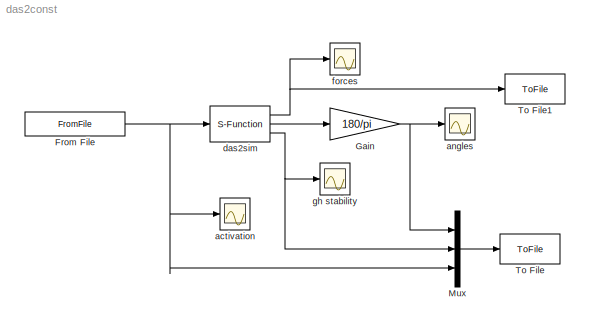
MODEL das2const
KIND model
BLOCK [FromFile] From File
  FileName = initactmin.mat
  SampleTime = 0.0004
BLOCK [Gain] Gain
  Gain = 180/pi
  OutDataTypeMode = Inherit via internal rule
  ParameterDataTypeMode = Inherit via internal rule
  SaturateOnIntegerOverflow = off
BLOCK [Mux] Mux
  DisplayOption = bar
  Inputs = 3
  Ports = [3, 1]
BLOCK [ToFile] To File
  Decimation = 10
  Filename = output.mat
  MatrixName = output
BLOCK [ToFile] To File1
  Decimation = 10
  Filename = forces.mat
  MatrixName = forces
BLOCK [Scope] activation
  DataFormat = StructureWithTime
  Decimation = 10
  Floating = off
  MaxDataPoints = 10000
  NumInputPorts = 1
  Ports = [1]
  SampleTime = 0
  SaveName = ScopeData2
  YMax = 0.07
  YMin = 0
  ZoomMode = yonly
BLOCK [Scope] angles
  DataFormat = StructureWithTime
  Decimation = 10
  Floating = off
  MaxDataPoints = 10000
  NumInputPorts = 1
  Ports = [1]
  SampleTime = 0
  YMax = 75
  YMin = -10
  ZoomMode = yonly
BLOCK [S-Function] das2sim
  FunctionName = das2sim
  Ports = [1, 3]
BLOCK [Scope] forces
  DataFormat = StructureWithTime
  Decimation = 10
  Floating = off
  MaxDataPoints = 10000
  NumInputPorts = 1
  Ports = [1]
  SampleTime = 0
  SaveName = ScopeData3
  YMax = 13
  YMin = -1
BLOCK [Scope] gh stability
  DataFormat = StructureWithTime
  Decimation = 10
  Floating = off
  MaxDataPoints = 10000
  NumInputPorts = 1
  Ports = [1]
  SampleTime = 0
  SaveName = ScopeData1
  YMax = 0.4
  YMin = 0
  ZoomMode = yonly
NET From File:1 -> Mux:3, activation:1, das2sim:1
NET Gain:1 -> Mux:1, angles:1
LINE Mux:1 -> To File:1
NET das2sim:1 -> To File1:1, forces:1
LINE das2sim:2 -> Gain:1
NET das2sim:3 -> Mux:2, gh stability:1
note: NET lines group one-source signal fan-out (src -> all destinations, sorted); 1:1 wires keep LINE
